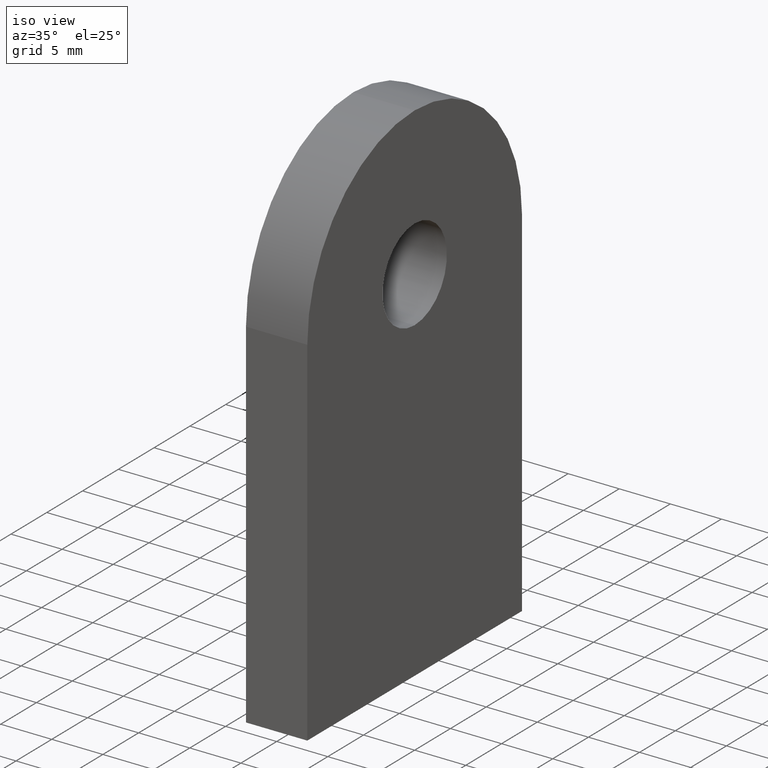
[diagram: clean part render]
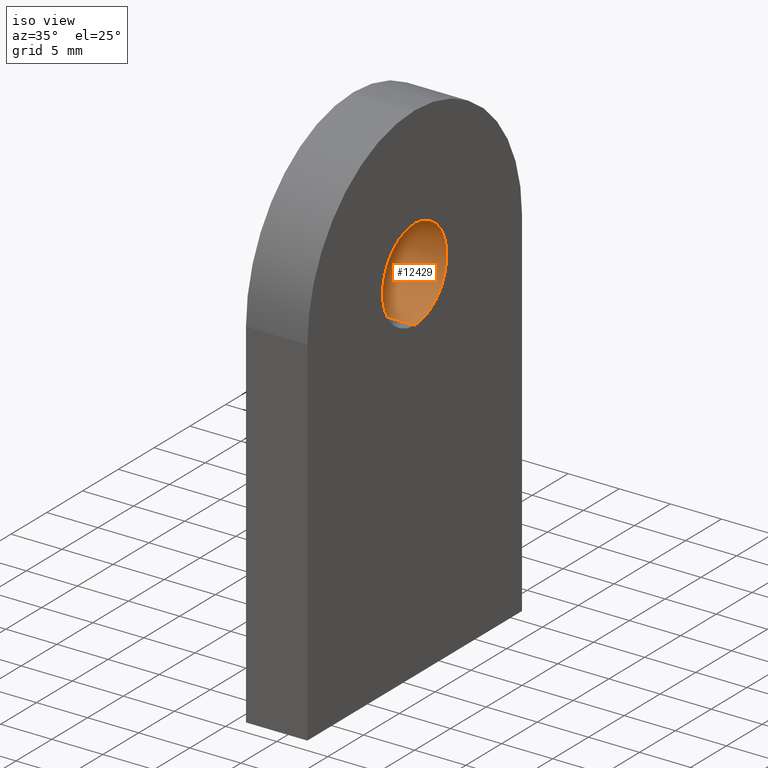
[diagram: same view with one face highlighted and labeled with its STEP entity id]
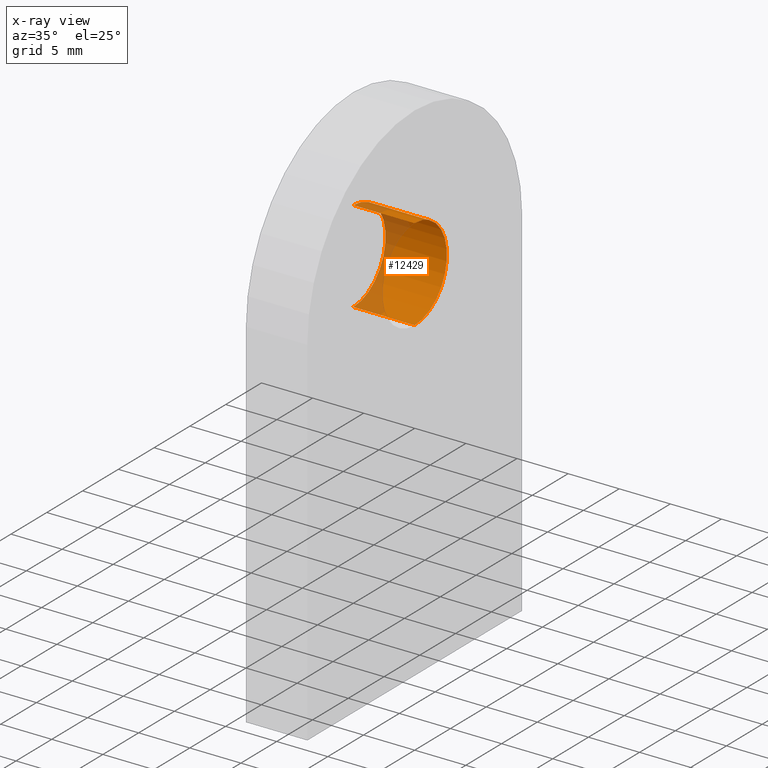
[diagram: x-ray of the same camera — body ghosted, the highlighted face saturated]
A machine part, iso view. The second image highlights one B-rep face of the part: STEP entity #12429.
The next image is the same camera in x-ray: the body ghosted, the highlighted face saturated — about 23% of this face is hidden behind the body in this view.
In plain terms, the highlighted cylindrical surface (partial cylindrical patch) has radius 4.5 mm, axis along (1, -0, -0).
Its self-contained STEP definition (entity closure, byte-faithful):
#222 = ORIENTED_EDGE ( 'NONE', *, *, #917, .F. ) ;
#361 = CARTESIAN_POINT ( 'NONE',  ( -3.000000000000000000, 5.510910596163090500E-016, 40.00000000000000000 ) ) ;
#510 = DIRECTION ( 'NONE',  ( 1.000000000000000000, -0.0000000000000000000, -0.0000000000000000000 ) ) ;
#527 = CARTESIAN_POINT ( 'NONE',  ( -3.000000000000000000, 0.0000000000000000000, 35.50000000000000000 ) ) ;
#653 = EDGE_LOOP ( 'NONE', ( #222, #11229, #3414, #6753 ) ) ;
#917 = EDGE_CURVE ( 'NONE', #8694, #5100, #5830, .T. ) ;
#1982 = AXIS2_PLACEMENT_3D ( 'NONE', #6065, #4225, #9110 ) ;
#2089 = EDGE_CURVE ( 'NONE', #2984, #8930, #7899, .T. ) ;
#2132 = CIRCLE ( 'NONE', #1982, 4.500000000000000900 ) ;
#2531 = CARTESIAN_POINT ( 'NONE',  ( 3.000000000000000000, 0.0000000000000000000, 30.99999999999999600 ) ) ;
#2984 = VERTEX_POINT ( 'NONE', #11154 ) ;
#3414 = ORIENTED_EDGE ( 'NONE', *, *, #2089, .T. ) ;
#3506 = CIRCLE ( 'NONE', #4482, 4.500000000000000900 ) ;
#3610 = DIRECTION ( 'NONE',  ( 0.0000000000000000000, 0.0000000000000000000, -1.000000000000000000 ) ) ;
#4225 = DIRECTION ( 'NONE',  ( 1.000000000000000000, 0.0000000000000000000, 0.0000000000000000000 ) ) ;
#4321 = CARTESIAN_POINT ( 'NONE',  ( 3.000000000000000000, 5.510910596163087600E-016, 40.00000000000000000 ) ) ;
#4482 = AXIS2_PLACEMENT_3D ( 'NONE', #8331, #5466, #8243 ) ;
#4772 = VECTOR ( 'NONE', #6137, 1000.000000000000000 ) ;
#4908 = VECTOR ( 'NONE', #510, 1000.000000000000000 ) ;
#5100 = VERTEX_POINT ( 'NONE', #4321 ) ;
#5466 = DIRECTION ( 'NONE',  ( 1.000000000000000000, 0.0000000000000000000, 0.0000000000000000000 ) ) ;
#5471 = DIRECTION ( 'NONE',  ( 1.000000000000000000, -0.0000000000000000000, -0.0000000000000000000 ) ) ;
#5700 = EDGE_CURVE ( 'NONE', #8930, #5100, #3506, .T. ) ;
#5830 = LINE ( 'NONE', #361, #4772 ) ;
#6065 = CARTESIAN_POINT ( 'NONE',  ( -3.000000000000000000, 0.0000000000000000000, 35.50000000000000000 ) ) ;
#6137 = DIRECTION ( 'NONE',  ( 1.000000000000000000, -0.0000000000000000000, -0.0000000000000000000 ) ) ;
#6577 = AXIS2_PLACEMENT_3D ( 'NONE', #527, #5471, #3610 ) ;
#6753 = ORIENTED_EDGE ( 'NONE', *, *, #5700, .T. ) ;
#7899 = LINE ( 'NONE', #11938, #4908 ) ;
#8243 = DIRECTION ( 'NONE',  ( 0.0000000000000000000, 0.0000000000000000000, -1.000000000000000000 ) ) ;
#8331 = CARTESIAN_POINT ( 'NONE',  ( 3.000000000000000000, 0.0000000000000000000, 35.50000000000000000 ) ) ;
#8347 = CYLINDRICAL_SURFACE ( 'NONE', #6577, 4.500000000000000900 ) ;
#8461 = EDGE_CURVE ( 'NONE', #2984, #8694, #2132, .T. ) ;
#8694 = VERTEX_POINT ( 'NONE', #11618 ) ;
#8930 = VERTEX_POINT ( 'NONE', #2531 ) ;
#8952 = FACE_OUTER_BOUND ( 'NONE', #653, .T. ) ;
#9110 = DIRECTION ( 'NONE',  ( 0.0000000000000000000, 0.0000000000000000000, -1.000000000000000000 ) ) ;
#11154 = CARTESIAN_POINT ( 'NONE',  ( -3.000000000000000000, 0.0000000000000000000, 30.99999999999999600 ) ) ;
#11229 = ORIENTED_EDGE ( 'NONE', *, *, #8461, .F. ) ;
#11618 = CARTESIAN_POINT ( 'NONE',  ( -3.000000000000000000, 5.510910596163087600E-016, 40.00000000000000000 ) ) ;
#11938 = CARTESIAN_POINT ( 'NONE',  ( -3.000000000000000000, 0.0000000000000000000, 30.99999999999999600 ) ) ;
#12429 = ADVANCED_FACE ( 'NONE', ( #8952 ), #8347, .F. ) ;